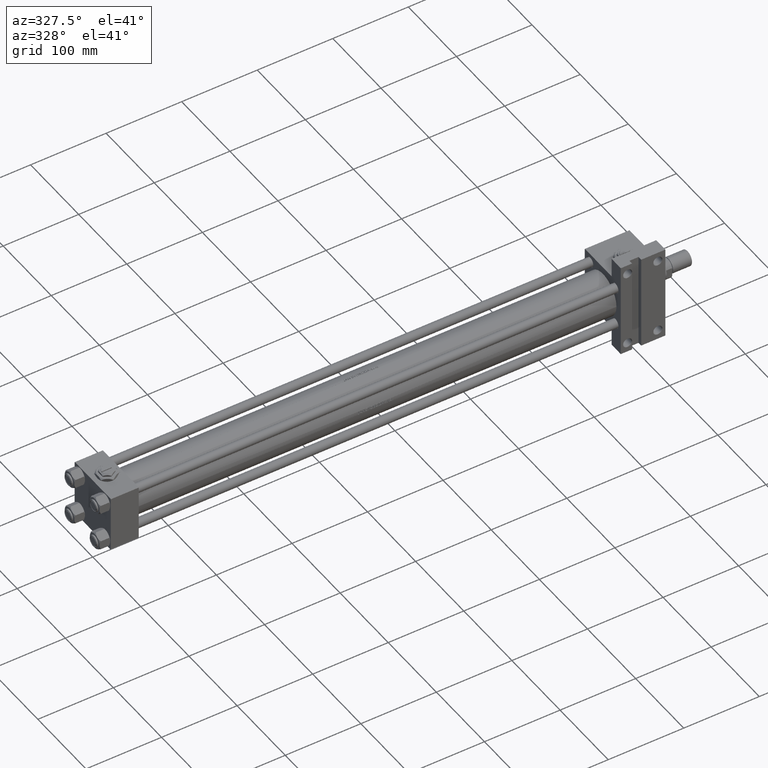
[diagram: clean part render]
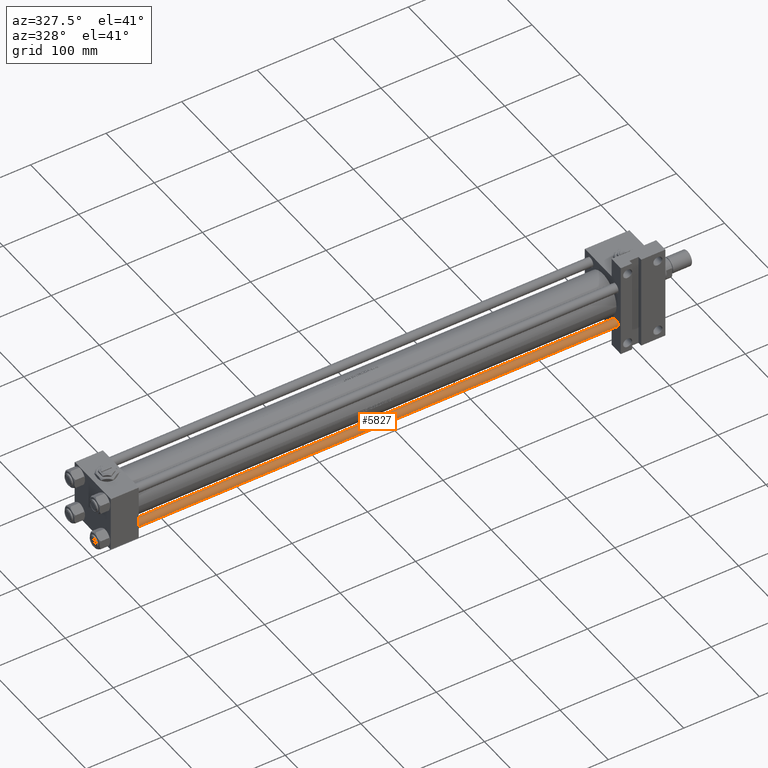
[diagram: same view with one face highlighted and labeled with its STEP entity id]
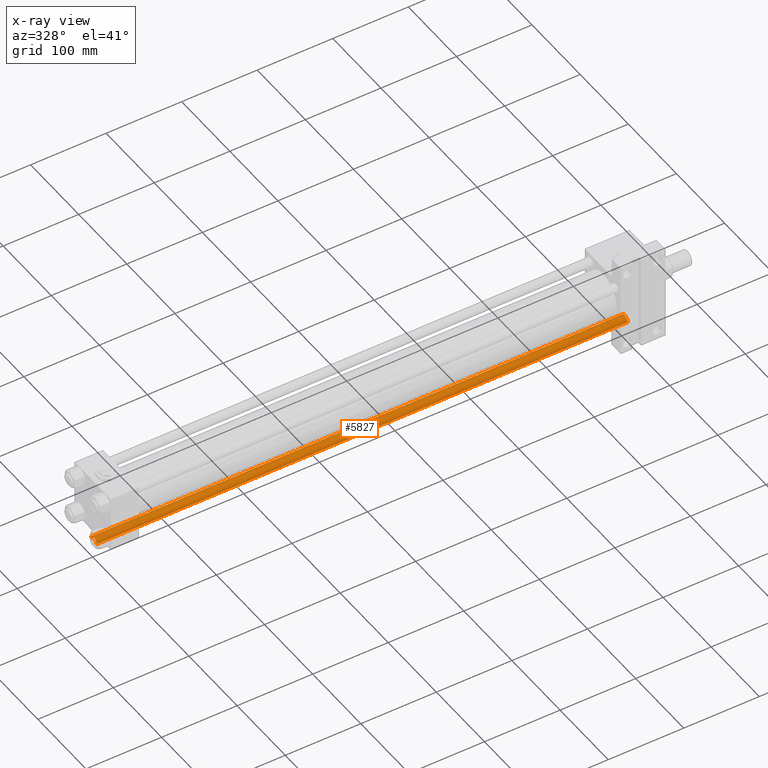
[diagram: x-ray of the same camera — body ghosted, the highlighted face saturated]
A machine part, auxiliary view. The second image highlights one B-rep face of the part: STEP entity #5827.
The next image is the same camera in x-ray: the body ghosted, the highlighted face saturated — about 0% of this face is hidden behind the body in this view.
In plain terms, the highlighted cylindrical surface (edge-blend (fillet) strip) has radius 6 mm, axis along (1, 0, 0).
Its self-contained STEP definition (entity closure, byte-faithful):
#2695 = CYLINDRICAL_SURFACE ( 'NONE', #49780, 6.000000000000000888 ) ;
#2782 = ORIENTED_EDGE ( 'NONE', *, *, #19707, .T. ) ;
#3633 = VECTOR ( 'NONE', #28556, 1000.000000000000000 ) ;
#3667 = VERTEX_POINT ( 'NONE', #45545 ) ;
#3872 = CARTESIAN_POINT ( 'NONE',  ( 6.000000000000000888, 7.347880794884120722E-16, 703.5000000000000000 ) ) ;
#4553 = CARTESIAN_POINT ( 'NONE',  ( -6.000000000000000888, 0.000000000000000000, 0.4999999999998339106 ) ) ;
#5586 = ORIENTED_EDGE ( 'NONE', *, *, #31228, .T. ) ;
#5736 = VERTEX_POINT ( 'NONE', #35572 ) ;
#5770 = FACE_OUTER_BOUND ( 'NONE', #7002, .T. ) ;
#5827 = ADVANCED_FACE ( 'NONE', ( #5770 ), #2695, .T. ) ;
#6147 = DIRECTION ( 'NONE',  ( 1.000000000000000000, 0.000000000000000000, 0.000000000000000000 ) ) ;
#7002 = EDGE_LOOP ( 'NONE', ( #34234, #2782, #5586, #18094 ) ) ;
#7551 = CARTESIAN_POINT ( 'NONE',  ( 0.000000000000000000, 0.000000000000000000, 703.5000000000000000 ) ) ;
#9590 = CARTESIAN_POINT ( 'NONE',  ( 0.000000000000000000, 0.000000000000000000, 704.0000000000000000 ) ) ;
#9750 = VERTEX_POINT ( 'NONE', #3872 ) ;
#10291 = VERTEX_POINT ( 'NONE', #4553 ) ;
#10960 = AXIS2_PLACEMENT_3D ( 'NONE', #7551, #26057, #30107 ) ;
#14761 = AXIS2_PLACEMENT_3D ( 'NONE', #25409, #33018, #6147 ) ;
#17804 = DIRECTION ( 'NONE',  ( -0.000000000000000000, -0.000000000000000000, -1.000000000000000000 ) ) ;
#17950 = DIRECTION ( 'NONE',  ( -0.000000000000000000, -0.000000000000000000, -1.000000000000000000 ) ) ;
#18094 = ORIENTED_EDGE ( 'NONE', *, *, #40837, .F. ) ;
#19707 = EDGE_CURVE ( 'NONE', #9750, #5736, #48220, .T. ) ;
#23071 = CIRCLE ( 'NONE', #10960, 6.000000000000000888 ) ;
#25009 = CARTESIAN_POINT ( 'NONE',  ( -6.000000000000000888, 0.000000000000000000, 704.0000000000000000 ) ) ;
#25409 = CARTESIAN_POINT ( 'NONE',  ( 0.000000000000000000, 0.000000000000000000, 0.4999999999998339106 ) ) ;
#25634 = CARTESIAN_POINT ( 'NONE',  ( 6.000000000000000888, 7.347880794884120722E-16, 704.0000000000000000 ) ) ;
#26057 = DIRECTION ( 'NONE',  ( 0.000000000000000000, 0.000000000000000000, -1.000000000000000000 ) ) ;
#28556 = DIRECTION ( 'NONE',  ( -0.000000000000000000, -0.000000000000000000, -1.000000000000000000 ) ) ;
#30107 = DIRECTION ( 'NONE',  ( 1.000000000000000000, 0.000000000000000000, 0.000000000000000000 ) ) ;
#31228 = EDGE_CURVE ( 'NONE', #5736, #10291, #43885, .T. ) ;
#33018 = DIRECTION ( 'NONE',  ( -0.000000000000000000, -0.000000000000000000, 1.000000000000000000 ) ) ;
#34234 = ORIENTED_EDGE ( 'NONE', *, *, #41771, .T. ) ;
#35572 = CARTESIAN_POINT ( 'NONE',  ( 6.000000000000000888, 7.347880794884120722E-16, 0.4999999999998339106 ) ) ;
#38788 = VECTOR ( 'NONE', #17804, 1000.000000000000000 ) ;
#40750 = DIRECTION ( 'NONE',  ( -1.000000000000000000, 0.000000000000000000, 0.000000000000000000 ) ) ;
#40837 = EDGE_CURVE ( 'NONE', #3667, #10291, #47329, .T. ) ;
#41771 = EDGE_CURVE ( 'NONE', #3667, #9750, #23071, .T. ) ;
#43885 = CIRCLE ( 'NONE', #14761, 6.000000000000000888 ) ;
#45545 = CARTESIAN_POINT ( 'NONE',  ( -6.000000000000000888, 0.000000000000000000, 703.5000000000000000 ) ) ;
#47329 = LINE ( 'NONE', #25009, #3633 ) ;
#48220 = LINE ( 'NONE', #25634, #38788 ) ;
#49780 = AXIS2_PLACEMENT_3D ( 'NONE', #9590, #17950, #40750 ) ;